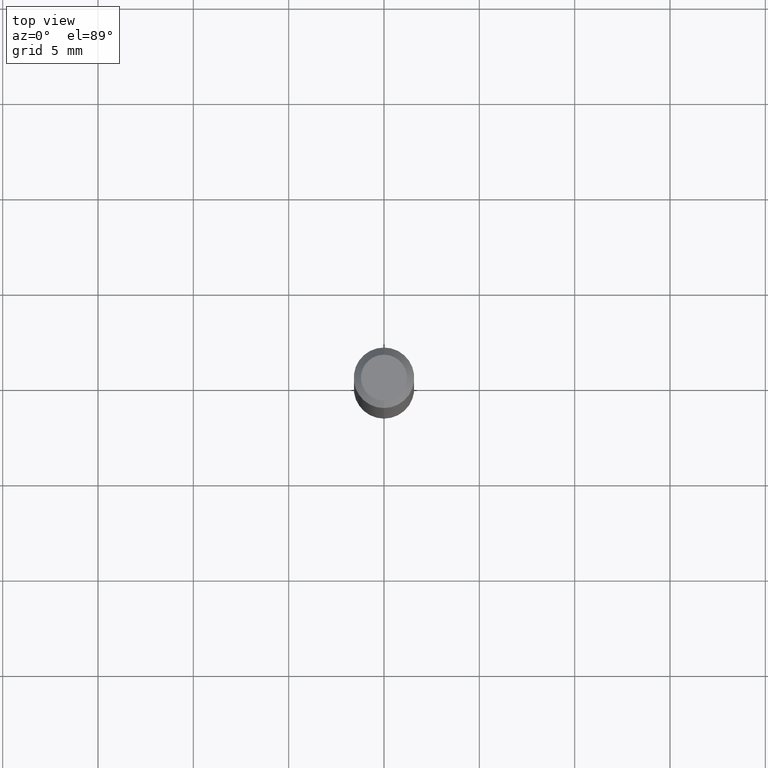
[diagram: clean part render]
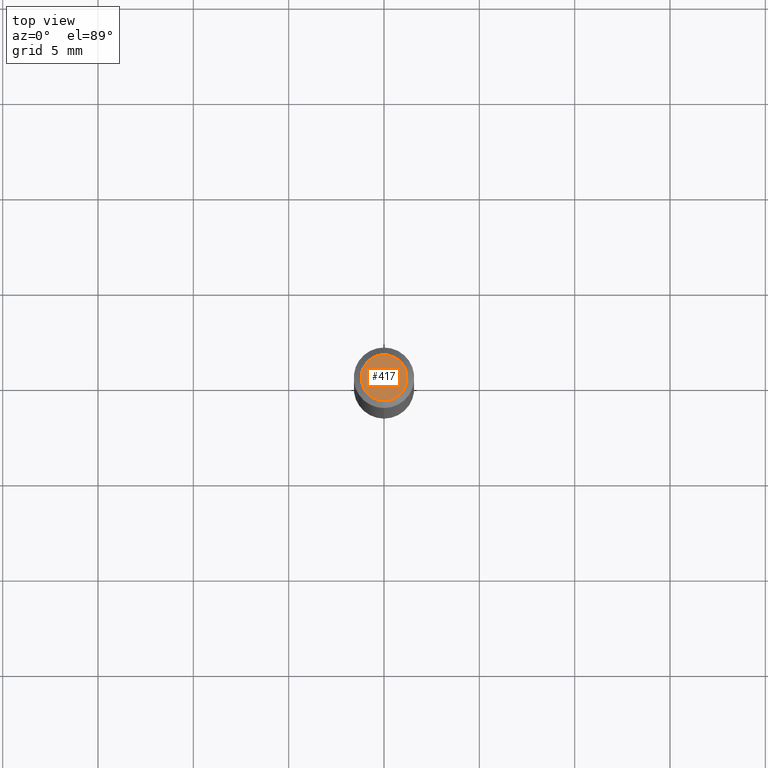
[diagram: same view with one face highlighted and labeled with its STEP entity id]
A machine part, top view. The second image highlights one B-rep face of the part: STEP entity #417.
In plain terms, the highlighted planar face has unit normal (0, -0, -1).
Its self-contained STEP definition (entity closure, byte-faithful):
#48 = VERTEX_POINT ( 'NONE', #151 ) ;
#62 = CARTESIAN_POINT ( 'NONE',  ( -5.856630768411542806E-45, 8.361616214231560244E-31, 2.394876459621132021E-16 ) ) ;
#72 = DIRECTION ( 'NONE',  ( -6.982962677686266711E-15, -1.000000000000000000, 3.491460355142647030E-15 ) ) ;
#113 = ORIENTED_EDGE ( 'NONE', *, *, #414, .T. ) ;
#142 = DIRECTION ( 'NONE',  ( -2.445483459024879606E-29, 3.491460355142645846E-15, 1.000000000000000000 ) ) ;
#145 = PLANE ( 'NONE',  #355 ) ;
#150 = DIRECTION ( 'NONE',  ( -6.982962677686266711E-15, -1.000000000000000000, 3.491460355142647030E-15 ) ) ;
#151 = CARTESIAN_POINT ( 'NONE',  ( -3.773273898774340269E-16, -0.04749999999999999362, 4.053320128313888837E-16 ) ) ;
#152 = ORIENTED_EDGE ( 'NONE', *, *, #384, .T. ) ;
#159 = VERTEX_POINT ( 'NONE', #161 ) ;
#161 = CARTESIAN_POINT ( 'NONE',  ( 3.840629472727447874E-16, 0.04749999999999999362, 7.364327909283752044E-17 ) ) ;
#225 = DIRECTION ( 'NONE',  ( 2.445483459024879326E-29, -3.491460355142645846E-15, -1.000000000000000000 ) ) ;
#231 = DIRECTION ( 'NONE',  ( 6.982962677686265922E-15, 1.000000000000000000, -3.491460355142645846E-15 ) ) ;
#238 = AXIS2_PLACEMENT_3D ( 'NONE', #346, #142, #72 ) ;
#305 = DIRECTION ( 'NONE',  ( -2.445483459024879606E-29, 3.491460355142645846E-15, 1.000000000000000000 ) ) ;
#314 = FACE_OUTER_BOUND ( 'NONE', #427, .T. ) ;
#315 = CIRCLE ( 'NONE', #238, 0.04749999999999999362 ) ;
#346 = CARTESIAN_POINT ( 'NONE',  ( -5.856630768411542806E-45, 8.361616214231560244E-31, 2.394876459621132021E-16 ) ) ;
#355 = AXIS2_PLACEMENT_3D ( 'NONE', #419, #225, #231 ) ;
#384 = EDGE_CURVE ( 'NONE', #159, #48, #315, .T. ) ;
#414 = EDGE_CURVE ( 'NONE', #48, #159, #509, .T. ) ;
#417 = ADVANCED_FACE ( 'NONE', ( #314 ), #145, .F. ) ;
#419 = CARTESIAN_POINT ( 'NONE',  ( 3.316907271900976096E-16, 0.04749999999999999362, -4.610054388821907444E-17 ) ) ;
#427 = EDGE_LOOP ( 'NONE', ( #152, #113 ) ) ;
#458 = AXIS2_PLACEMENT_3D ( 'NONE', #62, #305, #150 ) ;
#509 = CIRCLE ( 'NONE', #458, 0.04749999999999999362 ) ;